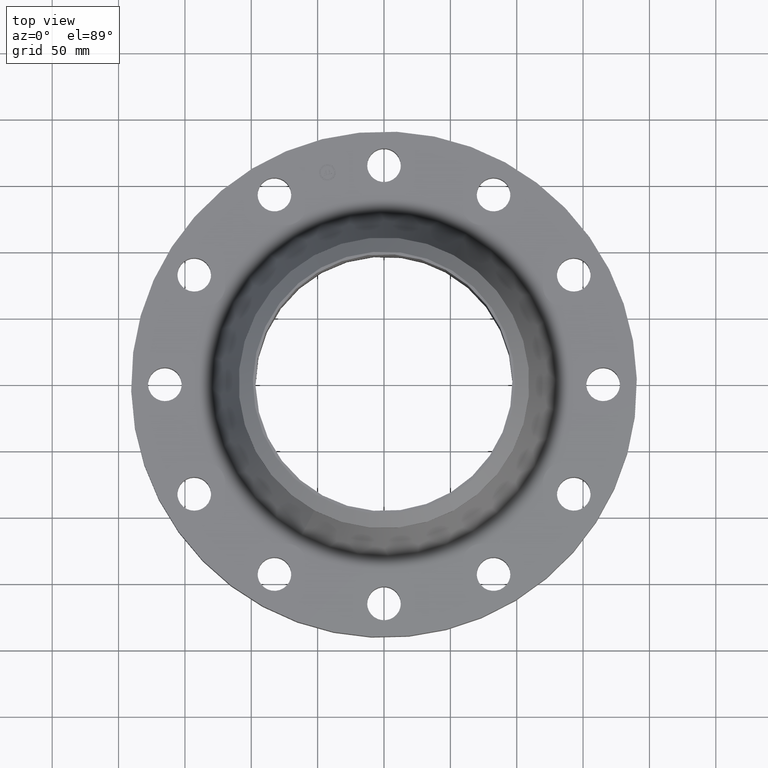
[diagram: clean part render]
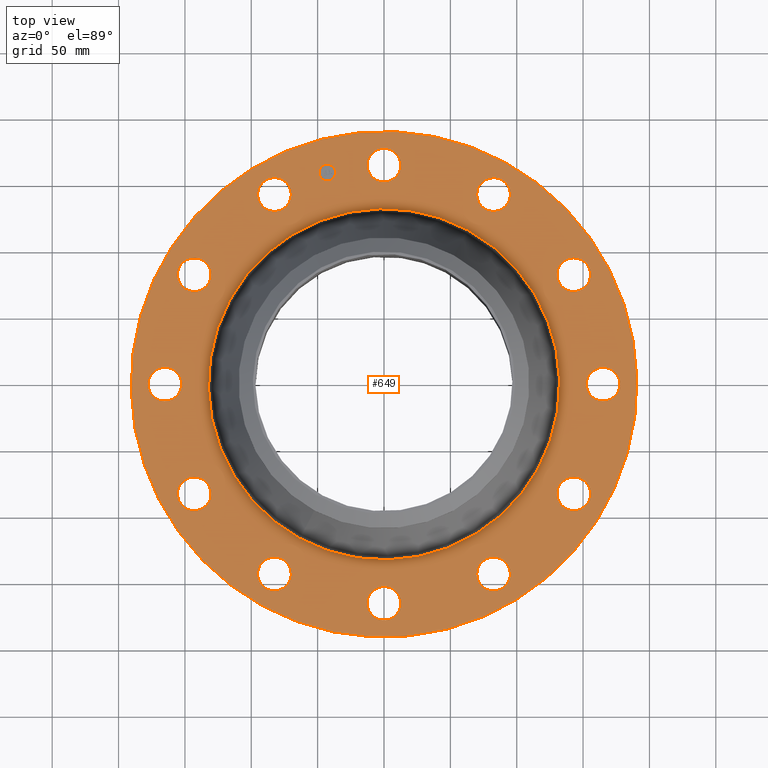
[diagram: same view with one face highlighted and labeled with its STEP entity id]
A machine part, top view. The second image highlights one B-rep face of the part: STEP entity #649.
In plain terms, the highlighted planar face has unit normal (0, 0, -1).
Its self-contained STEP definition (entity closure, byte-faithful):
#119=AXIS2_PLACEMENT_3D('Circle Axis2P3D',#117,#118,$) ;
#391=AXIS2_PLACEMENT_3D('Plane Axis2P3D',#388,#389,#390) ;
#395=AXIS2_PLACEMENT_3D('Circle Axis2P3D',#393,#394,$) ;
#404=AXIS2_PLACEMENT_3D('Circle Axis2P3D',#402,#403,$) ;
#417=AXIS2_PLACEMENT_3D('Circle Axis2P3D',#415,#416,$) ;
#426=AXIS2_PLACEMENT_3D('Circle Axis2P3D',#424,#425,$) ;
#435=AXIS2_PLACEMENT_3D('Circle Axis2P3D',#433,#434,$) ;
#444=AXIS2_PLACEMENT_3D('Circle Axis2P3D',#442,#443,$) ;
#453=AXIS2_PLACEMENT_3D('Circle Axis2P3D',#451,#452,$) ;
#462=AXIS2_PLACEMENT_3D('Circle Axis2P3D',#460,#461,$) ;
#471=AXIS2_PLACEMENT_3D('Circle Axis2P3D',#469,#470,$) ;
#480=AXIS2_PLACEMENT_3D('Circle Axis2P3D',#478,#479,$) ;
#489=AXIS2_PLACEMENT_3D('Circle Axis2P3D',#487,#488,$) ;
#498=AXIS2_PLACEMENT_3D('Circle Axis2P3D',#496,#497,$) ;
#507=AXIS2_PLACEMENT_3D('Circle Axis2P3D',#505,#506,$) ;
#516=AXIS2_PLACEMENT_3D('Circle Axis2P3D',#514,#515,$) ;
#525=AXIS2_PLACEMENT_3D('Circle Axis2P3D',#523,#524,$) ;
#534=AXIS2_PLACEMENT_3D('Circle Axis2P3D',#532,#533,$) ;
#543=AXIS2_PLACEMENT_3D('Circle Axis2P3D',#541,#542,$) ;
#552=AXIS2_PLACEMENT_3D('Circle Axis2P3D',#550,#551,$) ;
#561=AXIS2_PLACEMENT_3D('Circle Axis2P3D',#559,#560,$) ;
#570=AXIS2_PLACEMENT_3D('Circle Axis2P3D',#568,#569,$) ;
#579=AXIS2_PLACEMENT_3D('Circle Axis2P3D',#577,#578,$) ;
#588=AXIS2_PLACEMENT_3D('Circle Axis2P3D',#586,#587,$) ;
#597=AXIS2_PLACEMENT_3D('Circle Axis2P3D',#595,#596,$) ;
#606=AXIS2_PLACEMENT_3D('Circle Axis2P3D',#604,#605,$) ;
#615=AXIS2_PLACEMENT_3D('Circle Axis2P3D',#613,#614,$) ;
#624=AXIS2_PLACEMENT_3D('Circle Axis2P3D',#622,#623,$) ;
#633=AXIS2_PLACEMENT_3D('Circle Axis2P3D',#631,#632,$) ;
#642=AXIS2_PLACEMENT_3D('Circle Axis2P3D',#640,#641,$) ;
#46=CARTESIAN_POINT('Vertex',(-0.438791280947,6.73971276933,1.55999999999)) ;
#72=CARTESIAN_POINT('Vertex',(0.438791280979,6.26028723072,1.56000000001)) ;
#76=CARTESIAN_POINT('Control Point',(-0.438791280947,6.73971276933,1.56000000001)) ;
#77=CARTESIAN_POINT('Control Point',(-0.401137287196,6.80863794257,1.56000000001)) ;
#78=CARTESIAN_POINT('Control Point',(-0.349949867328,6.87016977142,1.56000000001)) ;
#79=CARTESIAN_POINT('Control Point',(-0.287153775557,6.92075322756,1.56000000001)) ;
#80=CARTESIAN_POINT('Control Point',(-0.145111459002,6.99457227635,1.56)) ;
#81=CARTESIAN_POINT('Control Point',(0.0142976312754,7.00920147983,1.56)) ;
#82=CARTESIAN_POINT('Control Point',(0.0944690784509,7.00056584236,1.56)) ;
#83=CARTESIAN_POINT('Control Point',(0.247106113687,6.95232470709,1.56)) ;
#84=CARTESIAN_POINT('Control Point',(0.370169771387,6.84994986736,1.56)) ;
#85=CARTESIAN_POINT('Control Point',(0.420753227528,6.78715377559,1.56)) ;
#86=CARTESIAN_POINT('Control Point',(0.494572276324,6.64511145903,1.55999999999)) ;
#87=CARTESIAN_POINT('Control Point',(0.509201479801,6.48570236875,1.55999999999)) ;
#88=CARTESIAN_POINT('Control Point',(0.500565842331,6.40553092158,1.55999999999)) ;
#89=CARTESIAN_POINT('Control Point',(0.476445274698,6.32921240396,1.55999999999)) ;
#90=CARTESIAN_POINT('Control Point',(0.438791280947,6.26028723073,1.55999999999)) ;
#117=CARTESIAN_POINT('Axis2P3D Location',(0.,6.50000000003,1.55999999999)) ;
#388=CARTESIAN_POINT('Axis2P3D Location',(0.,7.50000000003,1.56000000001)) ;
#393=CARTESIAN_POINT('Axis2P3D Location',(-1.28121485424E-011,3.33451551585E-013,1.56000000001)) ;
#397=CARTESIAN_POINT('Vertex',(3.59569153955,6.5818692142,1.55999999998)) ;
#399=CARTESIAN_POINT('Vertex',(-3.59569153955,-6.5818692142,1.55999999998)) ;
#402=CARTESIAN_POINT('Axis2P3D Location',(1.28121485424E-011,-1.36647998254E-011,1.56000000001)) ;
#415=CARTESIAN_POINT('Axis2P3D Location',(4.3665928266E-011,-3.05197686895E-011,1.56000000001)) ;
#419=CARTESIAN_POINT('Vertex',(-2.49717184861,-4.57104240788,1.56000000001)) ;
#421=CARTESIAN_POINT('Vertex',(2.49717184861,4.57104240788,1.56000000001)) ;
#424=CARTESIAN_POINT('Axis2P3D Location',(-4.3665928266E-011,1.71884204158E-011,1.56000000001)) ;
#433=CARTESIAN_POINT('Axis2P3D Location',(3.25000000004,5.62916512462,1.56000000001)) ;
#437=CARTESIAN_POINT('Vertex',(3.51014801162,5.20217213632,1.55999999999)) ;
#439=CARTESIAN_POINT('Vertex',(2.9898519884,6.05615811292,1.55999999999)) ;
#442=CARTESIAN_POINT('Axis2P3D Location',(3.25000000002,5.6291651246,1.56000000001)) ;
#451=CARTESIAN_POINT('Axis2P3D Location',(5.62916512465,3.25000000002,1.56000000001)) ;
#455=CARTESIAN_POINT('Vertex',(5.64096341727,2.7501392191,1.55999999999)) ;
#457=CARTESIAN_POINT('Vertex',(5.61736683197,3.74986078092,1.55999999999)) ;
#460=CARTESIAN_POINT('Axis2P3D Location',(5.62916512458,3.25000000002,1.56000000001)) ;
#469=CARTESIAN_POINT('Axis2P3D Location',(6.50000000002,-6.66567413689E-012,1.56000000001)) ;
#473=CARTESIAN_POINT('Vertex',(6.26028723069,-0.438791280949,1.56000000001)) ;
#475=CARTESIAN_POINT('Vertex',(6.73971276933,0.438791280947,1.55999999999)) ;
#478=CARTESIAN_POINT('Axis2P3D Location',(6.50000000002,-6.66567413689E-012,1.56000000001)) ;
#487=CARTESIAN_POINT('Axis2P3D Location',(5.62916512462,-3.25,1.56000000001)) ;
#491=CARTESIAN_POINT('Vertex',(5.20217213632,-3.51014801162,1.55999999999)) ;
#493=CARTESIAN_POINT('Vertex',(6.05615811292,-2.9898519884,1.55999999999)) ;
#496=CARTESIAN_POINT('Axis2P3D Location',(5.62916512462,-3.25,1.56000000001)) ;
#505=CARTESIAN_POINT('Axis2P3D Location',(3.24999999999,-5.62916512462,1.56000000001)) ;
#509=CARTESIAN_POINT('Vertex',(2.7501392191,-5.64096341727,1.55999999999)) ;
#511=CARTESIAN_POINT('Vertex',(3.74986078092,-5.61736683197,1.55999999999)) ;
#514=CARTESIAN_POINT('Axis2P3D Location',(3.24999999999,-5.62916512462,1.56000000001)) ;
#523=CARTESIAN_POINT('Axis2P3D Location',(-3.49676543189E-017,-6.50000000003,1.56000000001)) ;
#527=CARTESIAN_POINT('Vertex',(-0.438791280979,-6.26028723073,1.56000000001)) ;
#529=CARTESIAN_POINT('Vertex',(0.438791280947,-6.73971276933,1.55999999999)) ;
#532=CARTESIAN_POINT('Axis2P3D Location',(3.49676543189E-017,-6.50000000003,1.56000000001)) ;
#541=CARTESIAN_POINT('Axis2P3D Location',(-3.25000000004,-5.62916512463,1.56000000001)) ;
#545=CARTESIAN_POINT('Vertex',(-3.51014801162,-5.20217213632,1.55999999999)) ;
#547=CARTESIAN_POINT('Vertex',(-2.9898519884,-6.05615811292,1.55999999999)) ;
#550=CARTESIAN_POINT('Axis2P3D Location',(-3.25000000002,-5.62916512462,1.56000000001)) ;
#559=CARTESIAN_POINT('Axis2P3D Location',(-5.62916512462,-3.25,1.56000000001)) ;
#563=CARTESIAN_POINT('Vertex',(-5.64096341727,-2.7501392191,1.55999999999)) ;
#565=CARTESIAN_POINT('Vertex',(-5.61736683197,-3.74986078092,1.55999999999)) ;
#568=CARTESIAN_POINT('Axis2P3D Location',(-5.62916512462,-3.25,1.56000000001)) ;
#577=CARTESIAN_POINT('Axis2P3D Location',(-6.50000000002,-6.66567413689E-012,1.56000000001)) ;
#581=CARTESIAN_POINT('Vertex',(-6.26028723069,0.438791280936,1.56000000001)) ;
#583=CARTESIAN_POINT('Vertex',(-6.73971276933,-0.438791280947,1.55999999999)) ;
#586=CARTESIAN_POINT('Axis2P3D Location',(-6.50000000002,-6.66567413689E-012,1.56000000001)) ;
#595=CARTESIAN_POINT('Axis2P3D Location',(-5.62916512461,3.25000000001,1.56000000001)) ;
#599=CARTESIAN_POINT('Vertex',(-5.20217213632,3.51014801162,1.55999999999)) ;
#601=CARTESIAN_POINT('Vertex',(-6.05615811292,2.9898519884,1.55999999999)) ;
#604=CARTESIAN_POINT('Axis2P3D Location',(-5.62916512462,3.25000000003,1.56000000001)) ;
#613=CARTESIAN_POINT('Axis2P3D Location',(-3.24999999999,5.62916512461,1.56000000001)) ;
#617=CARTESIAN_POINT('Vertex',(-2.7501392191,5.64096341727,1.55999999999)) ;
#619=CARTESIAN_POINT('Vertex',(-3.74986078092,5.61736683197,1.55999999999)) ;
#622=CARTESIAN_POINT('Axis2P3D Location',(-3.24999999999,5.62916512461,1.56000000001)) ;
#631=CARTESIAN_POINT('Axis2P3D Location',(-1.68232379316,6.2785178709,1.56000000001)) ;
#635=CARTESIAN_POINT('Vertex',(-1.92139043517,6.21446015727,1.56000000001)) ;
#637=CARTESIAN_POINT('Vertex',(-1.44325715116,6.34257558458,1.56000000001)) ;
#640=CARTESIAN_POINT('Axis2P3D Location',(-1.68232379315,6.27851787088,1.56000000001)) ;
#118=DIRECTION('Axis2P3D Direction',(0.,-0.,-0.0393700787402)) ;
#389=DIRECTION('Axis2P3D Direction',(0.,0.,-0.0393700787402)) ;
#390=DIRECTION('Axis2P3D XDirection',(0.0393700787402,0.,0.)) ;
#394=DIRECTION('Axis2P3D Direction',(0.,0.,-0.0393700787402)) ;
#403=DIRECTION('Axis2P3D Direction',(0.,0.,-0.0393700787402)) ;
#416=DIRECTION('Axis2P3D Direction',(0.,0.,-0.0393700787402)) ;
#425=DIRECTION('Axis2P3D Direction',(0.,0.,-0.0393700787402)) ;
#434=DIRECTION('Axis2P3D Direction',(0.,0.,-0.0393700787402)) ;
#443=DIRECTION('Axis2P3D Direction',(0.,0.,-0.0393700787402)) ;
#452=DIRECTION('Axis2P3D Direction',(0.,0.,-0.0393700787402)) ;
#461=DIRECTION('Axis2P3D Direction',(0.,0.,-0.0393700787402)) ;
#470=DIRECTION('Axis2P3D Direction',(0.,0.,-0.0393700787402)) ;
#479=DIRECTION('Axis2P3D Direction',(0.,0.,-0.0393700787402)) ;
#488=DIRECTION('Axis2P3D Direction',(0.,0.,-0.0393700787402)) ;
#497=DIRECTION('Axis2P3D Direction',(0.,0.,-0.0393700787402)) ;
#506=DIRECTION('Axis2P3D Direction',(0.,0.,-0.0393700787402)) ;
#515=DIRECTION('Axis2P3D Direction',(0.,0.,-0.0393700787402)) ;
#524=DIRECTION('Axis2P3D Direction',(0.,0.,-0.0393700787402)) ;
#533=DIRECTION('Axis2P3D Direction',(0.,0.,-0.0393700787402)) ;
#542=DIRECTION('Axis2P3D Direction',(0.,0.,-0.0393700787402)) ;
#551=DIRECTION('Axis2P3D Direction',(0.,0.,-0.0393700787402)) ;
#560=DIRECTION('Axis2P3D Direction',(0.,0.,-0.0393700787402)) ;
#569=DIRECTION('Axis2P3D Direction',(0.,0.,-0.0393700787402)) ;
#578=DIRECTION('Axis2P3D Direction',(0.,0.,-0.0393700787402)) ;
#587=DIRECTION('Axis2P3D Direction',(0.,0.,-0.0393700787402)) ;
#596=DIRECTION('Axis2P3D Direction',(0.,0.,-0.0393700787402)) ;
#605=DIRECTION('Axis2P3D Direction',(0.,0.,-0.0393700787402)) ;
#614=DIRECTION('Axis2P3D Direction',(0.,0.,-0.0393700787402)) ;
#623=DIRECTION('Axis2P3D Direction',(0.,0.,-0.0393700787402)) ;
#632=DIRECTION('Axis2P3D Direction',(0.,0.,-0.0393700787402)) ;
#641=DIRECTION('Axis2P3D Direction',(0.,0.,-0.0393700787402)) ;
#408=ORIENTED_EDGE('',*,*,#401,.F.) ;
#409=ORIENTED_EDGE('',*,*,#406,.F.) ;
#412=ORIENTED_EDGE('',*,*,#91,.T.) ;
#413=ORIENTED_EDGE('',*,*,#121,.T.) ;
#430=ORIENTED_EDGE('',*,*,#423,.T.) ;
#431=ORIENTED_EDGE('',*,*,#428,.T.) ;
#448=ORIENTED_EDGE('',*,*,#441,.T.) ;
#449=ORIENTED_EDGE('',*,*,#446,.T.) ;
#466=ORIENTED_EDGE('',*,*,#459,.T.) ;
#467=ORIENTED_EDGE('',*,*,#464,.T.) ;
#484=ORIENTED_EDGE('',*,*,#477,.T.) ;
#485=ORIENTED_EDGE('',*,*,#482,.T.) ;
#502=ORIENTED_EDGE('',*,*,#495,.T.) ;
#503=ORIENTED_EDGE('',*,*,#500,.T.) ;
#520=ORIENTED_EDGE('',*,*,#513,.T.) ;
#521=ORIENTED_EDGE('',*,*,#518,.T.) ;
#538=ORIENTED_EDGE('',*,*,#531,.T.) ;
#539=ORIENTED_EDGE('',*,*,#536,.T.) ;
#556=ORIENTED_EDGE('',*,*,#549,.T.) ;
#557=ORIENTED_EDGE('',*,*,#554,.T.) ;
#574=ORIENTED_EDGE('',*,*,#567,.T.) ;
#575=ORIENTED_EDGE('',*,*,#572,.T.) ;
#592=ORIENTED_EDGE('',*,*,#585,.T.) ;
#593=ORIENTED_EDGE('',*,*,#590,.T.) ;
#610=ORIENTED_EDGE('',*,*,#603,.T.) ;
#611=ORIENTED_EDGE('',*,*,#608,.T.) ;
#628=ORIENTED_EDGE('',*,*,#621,.T.) ;
#629=ORIENTED_EDGE('',*,*,#626,.T.) ;
#646=ORIENTED_EDGE('',*,*,#639,.T.) ;
#647=ORIENTED_EDGE('',*,*,#644,.T.) ;
#414=FACE_BOUND('',#411,.T.) ;
#432=FACE_BOUND('',#429,.T.) ;
#450=FACE_BOUND('',#447,.T.) ;
#468=FACE_BOUND('',#465,.T.) ;
#486=FACE_BOUND('',#483,.T.) ;
#504=FACE_BOUND('',#501,.T.) ;
#522=FACE_BOUND('',#519,.T.) ;
#540=FACE_BOUND('',#537,.T.) ;
#558=FACE_BOUND('',#555,.T.) ;
#576=FACE_BOUND('',#573,.T.) ;
#594=FACE_BOUND('',#591,.T.) ;
#612=FACE_BOUND('',#609,.T.) ;
#630=FACE_BOUND('',#627,.T.) ;
#648=FACE_BOUND('',#645,.T.) ;
#649=ADVANCED_FACE('PartBody',(#410,#414,#432,#450,#468,#486,#504,#522,#540,#558,#576,#594,#612,#630,#648),#392,.F.) ;
#75=B_SPLINE_CURVE_WITH_KNOTS('',5,(#76,#77,#78,#79,#80,#81,#82,#83,#84,#85,#86,#87,#88,#89,#90),.UNSPECIFIED.,.F.,.U.,(6,3,3,3,6),(-19.9491133504,-9.97455667519,1.7763568394E-015,9.97455667519,19.9491133504),.UNSPECIFIED.) ;
#120=CIRCLE('generated circle',#119,0.500000000002) ;
#396=CIRCLE('generated circle',#395,7.50000000003) ;
#405=CIRCLE('generated circle',#404,7.50000000003) ;
#418=CIRCLE('generated circle',#417,5.20867506535) ;
#427=CIRCLE('generated circle',#426,5.20867506535) ;
#436=CIRCLE('generated circle',#435,0.500000000011) ;
#445=CIRCLE('generated circle',#444,0.500000000011) ;
#454=CIRCLE('generated circle',#453,0.500000000013) ;
#463=CIRCLE('generated circle',#462,0.500000000013) ;
#472=CIRCLE('generated circle',#471,0.500000000013) ;
#481=CIRCLE('generated circle',#480,0.500000000013) ;
#490=CIRCLE('generated circle',#489,0.49999999998) ;
#499=CIRCLE('generated circle',#498,0.49999999998) ;
#508=CIRCLE('generated circle',#507,0.500000000014) ;
#517=CIRCLE('generated circle',#516,0.500000000014) ;
#526=CIRCLE('generated circle',#525,0.500000000028) ;
#535=CIRCLE('generated circle',#534,0.500000000028) ;
#544=CIRCLE('generated circle',#543,0.500000000011) ;
#553=CIRCLE('generated circle',#552,0.500000000011) ;
#562=CIRCLE('generated circle',#561,0.499999999976) ;
#571=CIRCLE('generated circle',#570,0.499999999976) ;
#580=CIRCLE('generated circle',#579,0.500000000013) ;
#589=CIRCLE('generated circle',#588,0.500000000013) ;
#598=CIRCLE('generated circle',#597,0.499999999999) ;
#607=CIRCLE('generated circle',#606,0.499999999999) ;
#616=CIRCLE('generated circle',#615,0.500000000014) ;
#625=CIRCLE('generated circle',#624,0.500000000014) ;
#634=CIRCLE('generated circle',#633,0.247499999996) ;
#643=CIRCLE('generated circle',#642,0.247499999996) ;
#91=EDGE_CURVE('',#47,#73,#75,.T.) ;
#121=EDGE_CURVE('',#73,#47,#120,.T.) ;
#401=EDGE_CURVE('',#398,#400,#396,.T.) ;
#406=EDGE_CURVE('',#400,#398,#405,.T.) ;
#423=EDGE_CURVE('',#420,#422,#418,.T.) ;
#428=EDGE_CURVE('',#422,#420,#427,.T.) ;
#441=EDGE_CURVE('',#438,#440,#436,.T.) ;
#446=EDGE_CURVE('',#440,#438,#445,.T.) ;
#459=EDGE_CURVE('',#456,#458,#454,.T.) ;
#464=EDGE_CURVE('',#458,#456,#463,.T.) ;
#477=EDGE_CURVE('',#474,#476,#472,.T.) ;
#482=EDGE_CURVE('',#476,#474,#481,.T.) ;
#495=EDGE_CURVE('',#492,#494,#490,.T.) ;
#500=EDGE_CURVE('',#494,#492,#499,.T.) ;
#513=EDGE_CURVE('',#510,#512,#508,.T.) ;
#518=EDGE_CURVE('',#512,#510,#517,.T.) ;
#531=EDGE_CURVE('',#528,#530,#526,.T.) ;
#536=EDGE_CURVE('',#530,#528,#535,.T.) ;
#549=EDGE_CURVE('',#546,#548,#544,.T.) ;
#554=EDGE_CURVE('',#548,#546,#553,.T.) ;
#567=EDGE_CURVE('',#564,#566,#562,.T.) ;
#572=EDGE_CURVE('',#566,#564,#571,.T.) ;
#585=EDGE_CURVE('',#582,#584,#580,.T.) ;
#590=EDGE_CURVE('',#584,#582,#589,.T.) ;
#603=EDGE_CURVE('',#600,#602,#598,.T.) ;
#608=EDGE_CURVE('',#602,#600,#607,.T.) ;
#621=EDGE_CURVE('',#618,#620,#616,.T.) ;
#626=EDGE_CURVE('',#620,#618,#625,.T.) ;
#639=EDGE_CURVE('',#636,#638,#634,.T.) ;
#644=EDGE_CURVE('',#638,#636,#643,.T.) ;
#407=EDGE_LOOP('',(#408,#409)) ;
#411=EDGE_LOOP('',(#412,#413)) ;
#429=EDGE_LOOP('',(#430,#431)) ;
#447=EDGE_LOOP('',(#448,#449)) ;
#465=EDGE_LOOP('',(#466,#467)) ;
#483=EDGE_LOOP('',(#484,#485)) ;
#501=EDGE_LOOP('',(#502,#503)) ;
#519=EDGE_LOOP('',(#520,#521)) ;
#537=EDGE_LOOP('',(#538,#539)) ;
#555=EDGE_LOOP('',(#556,#557)) ;
#573=EDGE_LOOP('',(#574,#575)) ;
#591=EDGE_LOOP('',(#592,#593)) ;
#609=EDGE_LOOP('',(#610,#611)) ;
#627=EDGE_LOOP('',(#628,#629)) ;
#645=EDGE_LOOP('',(#646,#647)) ;
#410=FACE_OUTER_BOUND('',#407,.T.) ;
#392=PLANE('',#391) ;
#47=VERTEX_POINT('',#46) ;
#73=VERTEX_POINT('',#72) ;
#398=VERTEX_POINT('',#397) ;
#400=VERTEX_POINT('',#399) ;
#420=VERTEX_POINT('',#419) ;
#422=VERTEX_POINT('',#421) ;
#438=VERTEX_POINT('',#437) ;
#440=VERTEX_POINT('',#439) ;
#456=VERTEX_POINT('',#455) ;
#458=VERTEX_POINT('',#457) ;
#474=VERTEX_POINT('',#473) ;
#476=VERTEX_POINT('',#475) ;
#492=VERTEX_POINT('',#491) ;
#494=VERTEX_POINT('',#493) ;
#510=VERTEX_POINT('',#509) ;
#512=VERTEX_POINT('',#511) ;
#528=VERTEX_POINT('',#527) ;
#530=VERTEX_POINT('',#529) ;
#546=VERTEX_POINT('',#545) ;
#548=VERTEX_POINT('',#547) ;
#564=VERTEX_POINT('',#563) ;
#566=VERTEX_POINT('',#565) ;
#582=VERTEX_POINT('',#581) ;
#584=VERTEX_POINT('',#583) ;
#600=VERTEX_POINT('',#599) ;
#602=VERTEX_POINT('',#601) ;
#618=VERTEX_POINT('',#617) ;
#620=VERTEX_POINT('',#619) ;
#636=VERTEX_POINT('',#635) ;
#638=VERTEX_POINT('',#637) ;